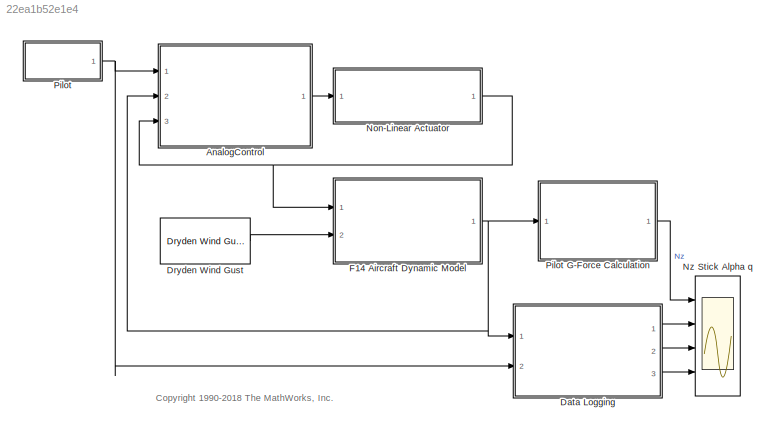
MODEL slx_22ea1b52e1e4
KIND model
CONFIG AbsTol = auto
CONFIG EnableMultiTasking = on
CONFIG FixedStep = auto
CONFIG MaxStep = 0.1
CONFIG MinStep = auto
CONFIG RelTol = 1e-3
CONFIG SampleTimeConstraint = Unconstrained
CONFIG Solver = VariableStepAuto
CONFIG SolverName = VariableStepAuto
CONFIG StartTime = 0.0
CONFIG StopTime = 10.0
BLOCK [ModelReference] AnalogControl
  ModelNameDialog = AnalogControl
  ModelReferenceVersion = 1.26
  Ports = [3, 1]
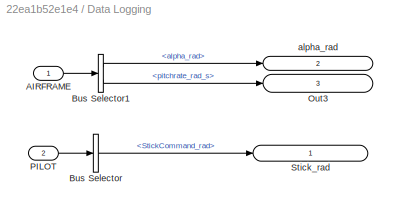
BLOCK [SubSystem] Data Logging
  Ports = [2, 3]
  RequestExecContextInheritance = off
BLOCK [Inport] Data Logging/AIRFRAME
  IconDisplay = Port number
BLOCK [BusSelector] Data Logging/Bus Selector
  OutputAsBus = off
  OutputSignals = StickCommand_rad
  Ports = [1, 1]
BLOCK [BusSelector] Data Logging/Bus Selector1
  OutputAsBus = off
  OutputSignals = alpha_rad,pitchrate_rad_s
  Ports = [1, 2]
BLOCK [Outport] Data Logging/Out3
  IconDisplay = Signal name
  Port = 3
  VectorParamsAs1DForOutWhenUnconnected = off
BLOCK [Inport] Data Logging/PILOT
  IconDisplay = Port number
  Port = 2
BLOCK [Outport] Data Logging/Stick_rad
  IconDisplay = Signal name
  VectorParamsAs1DForOutWhenUnconnected = off
BLOCK [Outport] Data Logging/alpha_rad
  IconDisplay = Signal name
  Port = 2
  VectorParamsAs1DForOutWhenUnconnected = off
BLOCK [Reference] Dryden Wind Gust  REF=wind_gust_lib/Dryden  (lib defined in slx_2318dbfd709b, slx_2892c208017c, +6 more)
Wind Gust
  Ports = [0, 1]
  SourceBlock = wind_gust_lib/Dryden\nWind Gust
  SourceType = SubSystem
BLOCK [ModelReference] F14 Aircraft Dynamic Model
  ModelNameDialog = f14_airframe
  ModelReferenceVersion = 1.32
  Ports = [2, 1]
BLOCK [ModelReference] Non-Linear Actuator
  ModelNameDialog = NonLinearActuator
  ModelReferenceVersion = 1.31
  Ports = [1, 1]
BLOCK [Scope] Nz Stick Alpha q
  Floating = off
  NumInputPorts = 4
  Ports = [4]
  ScopeSpecificationString = Simulink.scopes.TimeScopeBlockCfg('CurrentConfiguration', extmgr.ConfigurationSet(extmgr.Configuration('Core','General UI',true),extmgr.Configuration('Core','Source UI',true),extmgr.Configuration('Sources','WiredSimulink',true,'DataLoggingSaveFormat','Array','DataLoggingDecimation','1','DataLoggingDecimateData',true),extmgr.Configuration('Visuals','Time Domain',true,'TimeAxisLabels','All','Seriali...<+3682ch>
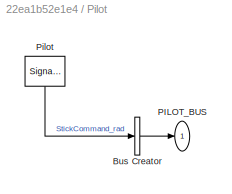
BLOCK [SubSystem] Pilot
  Ports = [0, 1]
  RequestExecContextInheritance = off
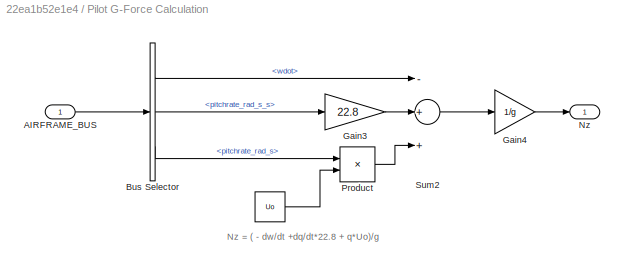
BLOCK [SubSystem] Pilot G-Force Calculation
  Ports = [1, 1]
  RequestExecContextInheritance = off
BLOCK [Constant] Pilot G-Force Calculation/ 
  Value = Uo
BLOCK [Inport] Pilot G-Force Calculation/AIRFRAME_BUS
  IconDisplay = Port number
BLOCK [BusSelector] Pilot G-Force Calculation/Bus Selector
  OutputAsBus = off
  OutputSignals = wdot,pitchrate_rad_s_s,pitchrate_rad_s
  Ports = [1, 3]
BLOCK [Gain] Pilot G-Force Calculation/Gain3
  Gain = 22.8
BLOCK [Gain] Pilot G-Force Calculation/Gain4
  Gain = 1/g
BLOCK [Outport] Pilot G-Force Calculation/Nz
  IconDisplay = Port number
  VectorParamsAs1DForOutWhenUnconnected = off
BLOCK [Product] Pilot G-Force Calculation/Product
  Ports = [2, 1]
BLOCK [Sum] Pilot G-Force Calculation/Sum2
  Inputs = -++
  Ports = [3, 1]
BLOCK [BusCreator] Pilot/Bus Creator
  DisplayOption = bar
  InheritFromInputs = on
  Inputs = 1
  OutDataTypeStr = Bus: PILOT_BUS
  Ports = [1, 1]
BLOCK [Outport] Pilot/PILOT_BUS
  IconDisplay = Port number
  OutDataTypeStr = Bus: PILOT_BUS
  VectorParamsAs1DForOutWhenUnconnected = off
BLOCK [SignalGenerator] Pilot/Pilot
  Frequency = .1
  Ports = [0, 1]
  WaveForm = square
ANNOTATION (root): <copyright redacted>
ANNOTATION Pilot G-Force Calculation: Nz = ( - dw/dt +dq/dt*22.8 + q*Uo)/g
LINE AnalogControl:1 -> Non-Linear Actuator:1
LINE Data Logging/AIRFRAME:1 -> Data Logging/Bus Selector1:1
LINE Data Logging/Bus Selector1:1 -> Data Logging/alpha_rad:1
LINE Data Logging/Bus Selector1:2 -> Data Logging/Out3:1
LINE Data Logging/Bus Selector:1 -> Data Logging/Stick_rad:1
LINE Data Logging/PILOT:1 -> Data Logging/Bus Selector:1
LINE Data Logging:1 -> Nz Stick Alpha q:2
LINE Data Logging:2 -> Nz Stick Alpha q:3
LINE Data Logging:3 -> Nz Stick Alpha q:4
LINE Dryden Wind Gust:1 -> F14 Aircraft Dynamic Model:2
NET F14 Aircraft Dynamic Model:1 -> AnalogControl:2, Data Logging:1, Pilot G-Force Calculation:1
NET Non-Linear Actuator:1 -> AnalogControl:3, F14 Aircraft Dynamic Model:1
LINE Pilot G-Force Calculation/ :1 -> Pilot G-Force Calculation/Product:2
LINE Pilot G-Force Calculation/AIRFRAME_BUS:1 -> Pilot G-Force Calculation/Bus Selector:1
LINE Pilot G-Force Calculation/Bus Selector:1 -> Pilot G-Force Calculation/Sum2:1
LINE Pilot G-Force Calculation/Bus Selector:2 -> Pilot G-Force Calculation/Gain3:1
LINE Pilot G-Force Calculation/Bus Selector:3 -> Pilot G-Force Calculation/Product:1
LINE Pilot G-Force Calculation/Gain3:1 -> Pilot G-Force Calculation/Sum2:2
LINE Pilot G-Force Calculation/Gain4:1 -> Pilot G-Force Calculation/Nz:1
LINE Pilot G-Force Calculation/Product:1 -> Pilot G-Force Calculation/Sum2:3
LINE Pilot G-Force Calculation/Sum2:1 -> Pilot G-Force Calculation/Gain4:1
LINE Pilot G-Force Calculation:1 -> Nz Stick Alpha q:1
LINE Pilot/Bus Creator:1 -> Pilot/PILOT_BUS:1
LINE Pilot/Pilot:1 -> Pilot/Bus Creator:1
NET Pilot:1 -> AnalogControl:1, Data Logging:2
note: NET lines group one-source signal fan-out (src -> all destinations, sorted); 1:1 wires keep LINE
